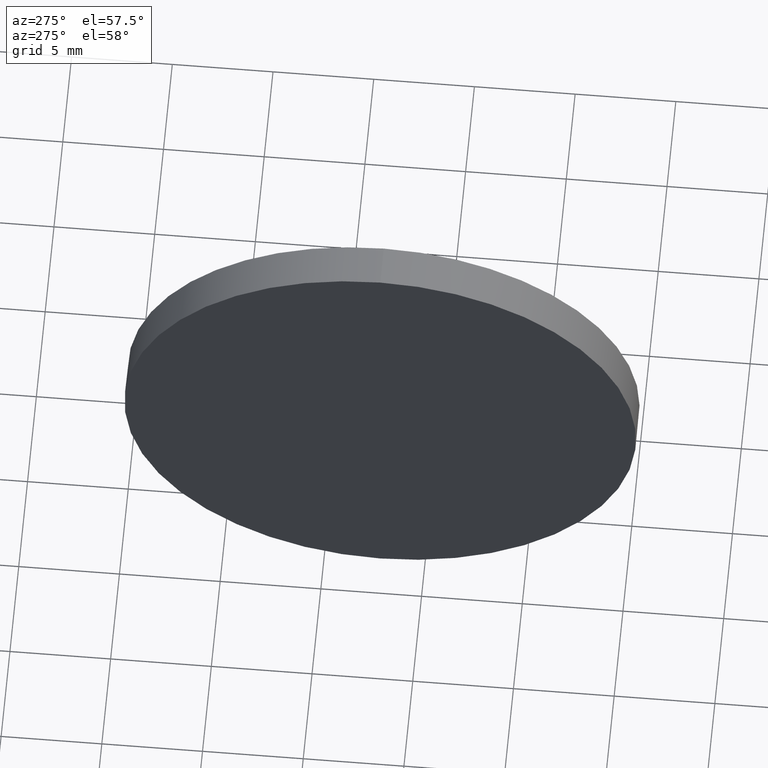
[diagram: clean part render]
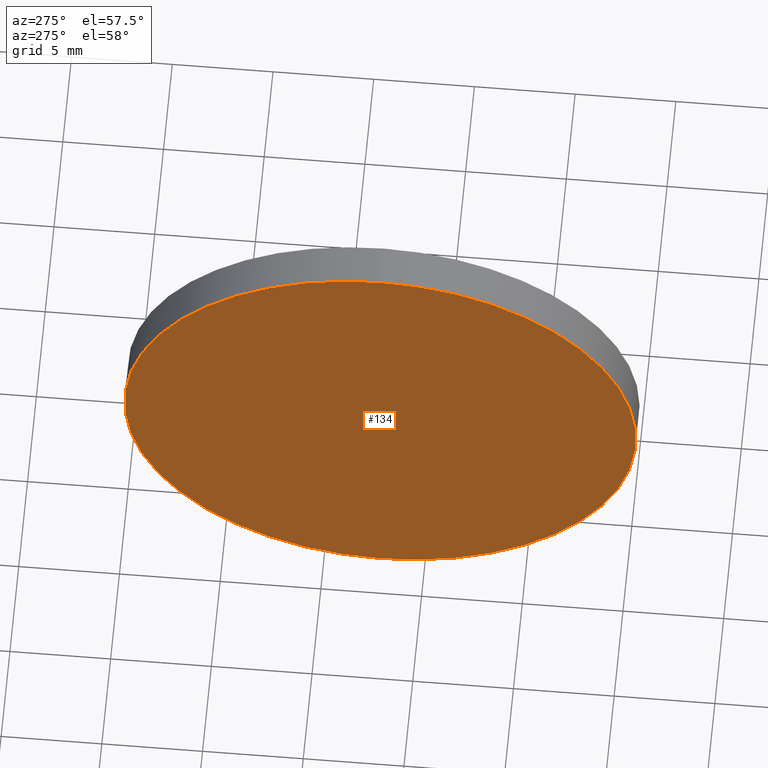
[diagram: same view with one face highlighted and labeled with its STEP entity id]
A machine part, auxiliary view. The second image highlights one B-rep face of the part: STEP entity #134.
In plain terms, the highlighted planar face has unit normal (1, 0, 0).
Its self-contained STEP definition (entity closure, byte-faithful):
#2 = AXIS2_PLACEMENT_3D ( 'NONE', #81, #112, #55 ) ;
#3 = DIRECTION ( 'NONE',  ( 0.0000000000000000000, 0.0000000000000000000, 1.000000000000000000 ) ) ;
#13 = AXIS2_PLACEMENT_3D ( 'NONE', #124, #39, #137 ) ;
#21 = CIRCLE ( 'NONE', #2, 12.70000000000004500 ) ;
#28 = FACE_OUTER_BOUND ( 'NONE', #49, .T. ) ;
#35 = CARTESIAN_POINT ( 'NONE',  ( 476.6849602909269400, 137.2007882096437800, -12.70000000000004500 ) ) ;
#36 = CARTESIAN_POINT ( 'NONE',  ( 476.6849602909269400, 137.2007882096437800, 0.0000000000000000000 ) ) ;
#39 = DIRECTION ( 'NONE',  ( 1.000000000000000000, 0.0000000000000000000, 0.0000000000000000000 ) ) ;
#46 = EDGE_CURVE ( 'NONE', #57, #105, #84, .T. ) ;
#49 = EDGE_LOOP ( 'NONE', ( #130, #85 ) ) ;
#52 = CARTESIAN_POINT ( 'NONE',  ( 476.6849602909269400, 137.2007882096437800, 12.70000000000004500 ) ) ;
#55 = DIRECTION ( 'NONE',  ( 0.0000000000000000000, 0.0000000000000000000, 1.000000000000000000 ) ) ;
#57 = VERTEX_POINT ( 'NONE', #35 ) ;
#67 = PLANE ( 'NONE',  #13 ) ;
#81 = CARTESIAN_POINT ( 'NONE',  ( 476.6849602909269400, 137.2007882096437800, 0.0000000000000000000 ) ) ;
#84 = CIRCLE ( 'NONE', #161, 12.70000000000004500 ) ;
#85 = ORIENTED_EDGE ( 'NONE', *, *, #46, .T. ) ;
#105 = VERTEX_POINT ( 'NONE', #52 ) ;
#108 = DIRECTION ( 'NONE',  ( -1.000000000000000000, -0.0000000000000000000, -0.0000000000000000000 ) ) ;
#112 = DIRECTION ( 'NONE',  ( -1.000000000000000000, -0.0000000000000000000, -0.0000000000000000000 ) ) ;
#124 = CARTESIAN_POINT ( 'NONE',  ( 476.6849602909269400, 137.2007882096437800, 0.0000000000000000000 ) ) ;
#130 = ORIENTED_EDGE ( 'NONE', *, *, #143, .T. ) ;
#134 = ADVANCED_FACE ( 'NONE', ( #28 ), #67, .F. ) ;
#137 = DIRECTION ( 'NONE',  ( 0.0000000000000000000, 0.0000000000000000000, -1.000000000000000000 ) ) ;
#143 = EDGE_CURVE ( 'NONE', #105, #57, #21, .T. ) ;
#161 = AXIS2_PLACEMENT_3D ( 'NONE', #36, #108, #3 ) ;